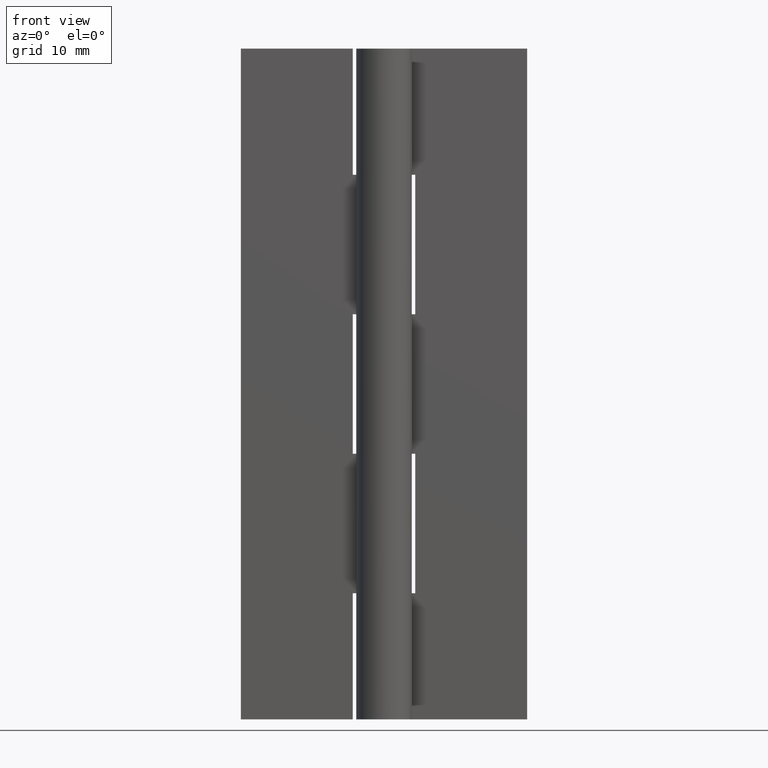
[diagram: clean part render]
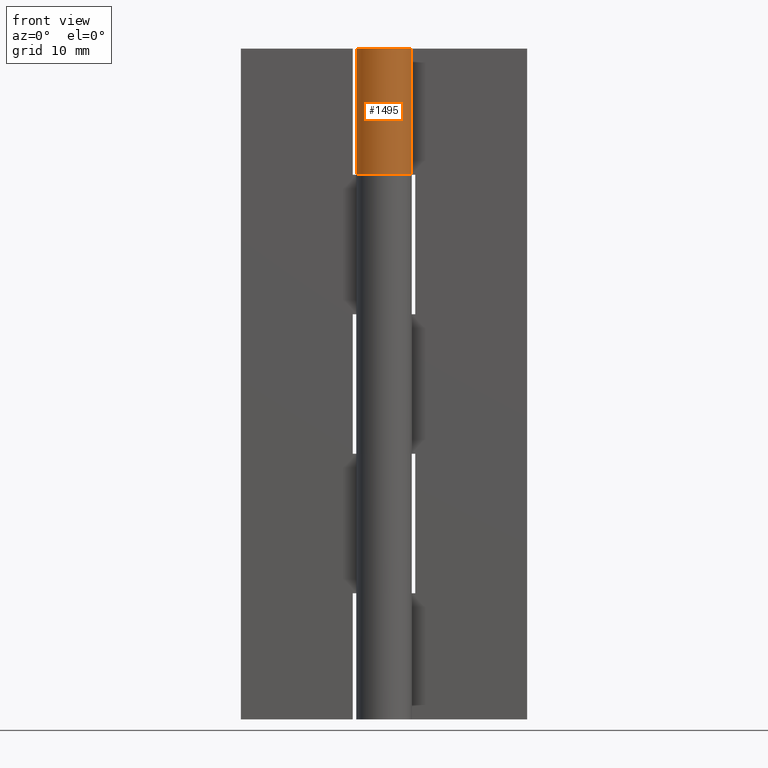
[diagram: same view with one face highlighted and labeled with its STEP entity id]
A machine part, front view. The second image highlights one B-rep face of the part: STEP entity #1495.
In plain terms, the highlighted face is a freeform B-spline surface patch.
Its self-contained STEP definition (entity closure, byte-faithful):
#1073=CARTESIAN_POINT('',(0.0,3.099998000000000,60.899993999999893));
#1074=VERTEX_POINT('',#1073);
#1075=CARTESIAN_POINT('',(0.003521362805220,3.099998000000000,60.899993999999893));
#1076=VERTEX_POINT('',#1075);
#1077=CARTESIAN_POINT('',(0.0,3.099998000000000,60.899993999999893));
#1078=CARTESIAN_POINT('',(0.003521362805220,3.099998000000000,60.899993999999893));
#1079=QUASI_UNIFORM_CURVE('',1,(#1077,#1078),.UNSPECIFIED.,.F.,.U.);
#1080=EDGE_CURVE('',#1074,#1076,#1079,.T.);
#1124=CARTESIAN_POINT('',(2.739981751764050,1.450000000000000,60.899993999999893));
#1125=VERTEX_POINT('',#1124);
#1131=CARTESIAN_POINT('',(0.0,3.099998000000000,60.899993999999893));
#1132=CARTESIAN_POINT('',(-2.356097610603766,3.099996737895512,60.899993999999893));
#1133=CARTESIAN_POINT('',(-2.986848545660751,0.829898189834370,60.899993999999893));
#1134=CARTESIAN_POINT('',(-3.617599480717734,-1.440200358226772,60.899993999999893));
#1135=CARTESIAN_POINT('',(-1.599218559171948,-2.655655344977900,60.899993999999893));
#1136=CARTESIAN_POINT('',(0.419162362373838,-3.871110331729029,60.899993999999893));
#1137=CARTESIAN_POINT('',(2.130594885355308,-2.251790737784724,60.899993999999893));
#1138=CARTESIAN_POINT('',(3.842027408336780,-0.632471143840418,60.899993999999893));
#1139=CARTESIAN_POINT('',(2.739981751764050,1.450000000000000,60.899993999999893));
#1147=(BOUNDED_CURVE()B_SPLINE_CURVE(2,(#1131,#1132,#1133,#1134,#1135,#1136,#1137,#1138,#1139),.UNSPECIFIED.,.F.,.U.)B_SPLINE_CURVE_WITH_KNOTS((3,2,2,2,3),(0.0,0.250000000000000,0.500000000000000,0.750000000000000,1.0),.UNSPECIFIED.)CURVE()GEOMETRIC_REPRESENTATION_ITEM()RATIONAL_B_SPLINE_CURVE((1.0,0.796150117301085,1.0,0.796150117301085,1.0,0.796150117301085,1.0,0.796150117301085,1.0))REPRESENTATION_ITEM(''));
#1148=EDGE_CURVE('',#1074,#1125,#1147,.T.);
#1178=CARTESIAN_POINT('',(2.739981751764050,1.450000000000000,75.0));
#1179=VERTEX_POINT('',#1178);
#1180=CARTESIAN_POINT('',(0.003521362805220,3.099998000000000,75.0));
#1181=VERTEX_POINT('',#1180);
#1182=CARTESIAN_POINT('',(2.739981751764050,1.450000000000002,75.0));
#1183=CARTESIAN_POINT('',(3.842352259281344,-0.633086258124314,75.0));
#1184=CARTESIAN_POINT('',(2.129955333572986,-2.252396562993291,75.0));
#1185=CARTESIAN_POINT('',(0.417558407864627,-3.871706867862268,75.0));
#1186=CARTESIAN_POINT('',(-1.600726611546711,-2.654745621540072,75.0));
#1187=CARTESIAN_POINT('',(-3.619011630958046,-1.437784375217877,75.0));
#1188=CARTESIAN_POINT('',(-2.986140433580759,0.832445380150624,75.0));
#1189=CARTESIAN_POINT('',(-2.353269236203469,3.102675135519129,75.0));
#1190=CARTESIAN_POINT('',(0.003521362805217,3.099997999999999,75.0));
#1198=(BOUNDED_CURVE()B_SPLINE_CURVE(2,(#1182,#1183,#1184,#1185,#1186,#1187,#1188,#1189,#1190),.UNSPECIFIED.,.F.,.U.)B_SPLINE_CURVE_WITH_KNOTS((3,2,2,2,3),(0.0,0.250000000000000,0.500000000000000,0.750000000000000,1.0),.UNSPECIFIED.)CURVE()GEOMETRIC_REPRESENTATION_ITEM()RATIONAL_B_SPLINE_CURVE((1.0,0.796064190964140,1.0,0.796064190964140,1.0,0.796064190964140,1.0,0.796064190964140,1.0))REPRESENTATION_ITEM(''));
#1199=EDGE_CURVE('',#1179,#1181,#1198,.T.);
#1451=CARTESIAN_POINT('',(0.003521362805220,3.099998000000000,60.899993999999893));
#1452=CARTESIAN_POINT('',(0.003521362805220,3.099998000000000,75.0));
#1453=QUASI_UNIFORM_CURVE('',1,(#1451,#1452),.UNSPECIFIED.,.F.,.U.);
#1454=EDGE_CURVE('',#1076,#1181,#1453,.T.);
#1462=CARTESIAN_POINT('',(2.701086253403874,1.521227481895005,60.547493849999881));
#1463=CARTESIAN_POINT('',(2.701086253403874,1.521227481895005,75.361312653750019));
#1464=CARTESIAN_POINT('',(4.535584156375530,-1.736100647256542,60.547493849999874));
#1465=CARTESIAN_POINT('',(4.535584156375530,-1.736100647256542,75.361312653750034));
#1466=CARTESIAN_POINT('',(0.994984302584502,-2.935984713449718,60.547493849999881));
#1467=CARTESIAN_POINT('',(0.994984302584502,-2.935984713449718,75.361312653750019));
#1468=CARTESIAN_POINT('',(-2.545615551206526,-4.135868779642896,60.547493849999874));
#1469=CARTESIAN_POINT('',(-2.545615551206526,-4.135868779642896,75.361312653750034));
#1470=CARTESIAN_POINT('',(-3.069419339239028,-0.434355752702138,60.547493849999881));
#1471=CARTESIAN_POINT('',(-3.069419339239028,-0.434355752702138,75.361312653750019));
#1472=CARTESIAN_POINT('',(-3.593223127271530,3.267157274238619,60.547493849999874));
#1473=CARTESIAN_POINT('',(-3.593223127271530,3.267157274238619,75.361312653750034));
#1474=CARTESIAN_POINT('',(0.141283570192311,3.096778802690581,60.547493849999881));
#1475=CARTESIAN_POINT('',(0.141283570192311,3.096778802690581,75.361312653750019));
#1483=(BOUNDED_SURFACE()B_SPLINE_SURFACE(1,2,((#1462,#1464,#1466,#1468,#1470,#1472,#1474),(#1463,#1465,#1467,#1469,#1471,#1473,#1475)),.UNSPECIFIED.,.F.,.F.,.U.)B_SPLINE_SURFACE_WITH_KNOTS((2,2),(3,2,2,3),(0.0,14.813818803750140),(0.0,5.826188062565751,11.652376125131500,17.478564187697248),.UNSPECIFIED.)GEOMETRIC_REPRESENTATION_ITEM()RATIONAL_B_SPLINE_SURFACE(((1.0,0.638320090924328,1.0,0.638320090924328,1.0,0.638320090924328,1.0),(1.0,0.638320090924328,1.0,0.638320090924328,1.0,0.638320090924328,1.0)))REPRESENTATION_ITEM('')SURFACE());
#1484=ORIENTED_EDGE('',*,*,#1080,.F.);
#1485=ORIENTED_EDGE('',*,*,#1148,.T.);
#1486=CARTESIAN_POINT('',(2.739981751764050,1.450000000000000,60.899993999999893));
#1487=CARTESIAN_POINT('',(2.739981751764050,1.450000000000000,75.0));
#1488=QUASI_UNIFORM_CURVE('',1,(#1486,#1487),.UNSPECIFIED.,.F.,.U.);
#1489=EDGE_CURVE('',#1125,#1179,#1488,.T.);
#1490=ORIENTED_EDGE('',*,*,#1489,.T.);
#1491=ORIENTED_EDGE('',*,*,#1199,.T.);
#1492=ORIENTED_EDGE('',*,*,#1454,.F.);
#1493=EDGE_LOOP('',(#1484,#1485,#1490,#1491,#1492));
#1494=FACE_OUTER_BOUND('',#1493,.T.);
#1495=ADVANCED_FACE('',(#1494),#1483,.T.);